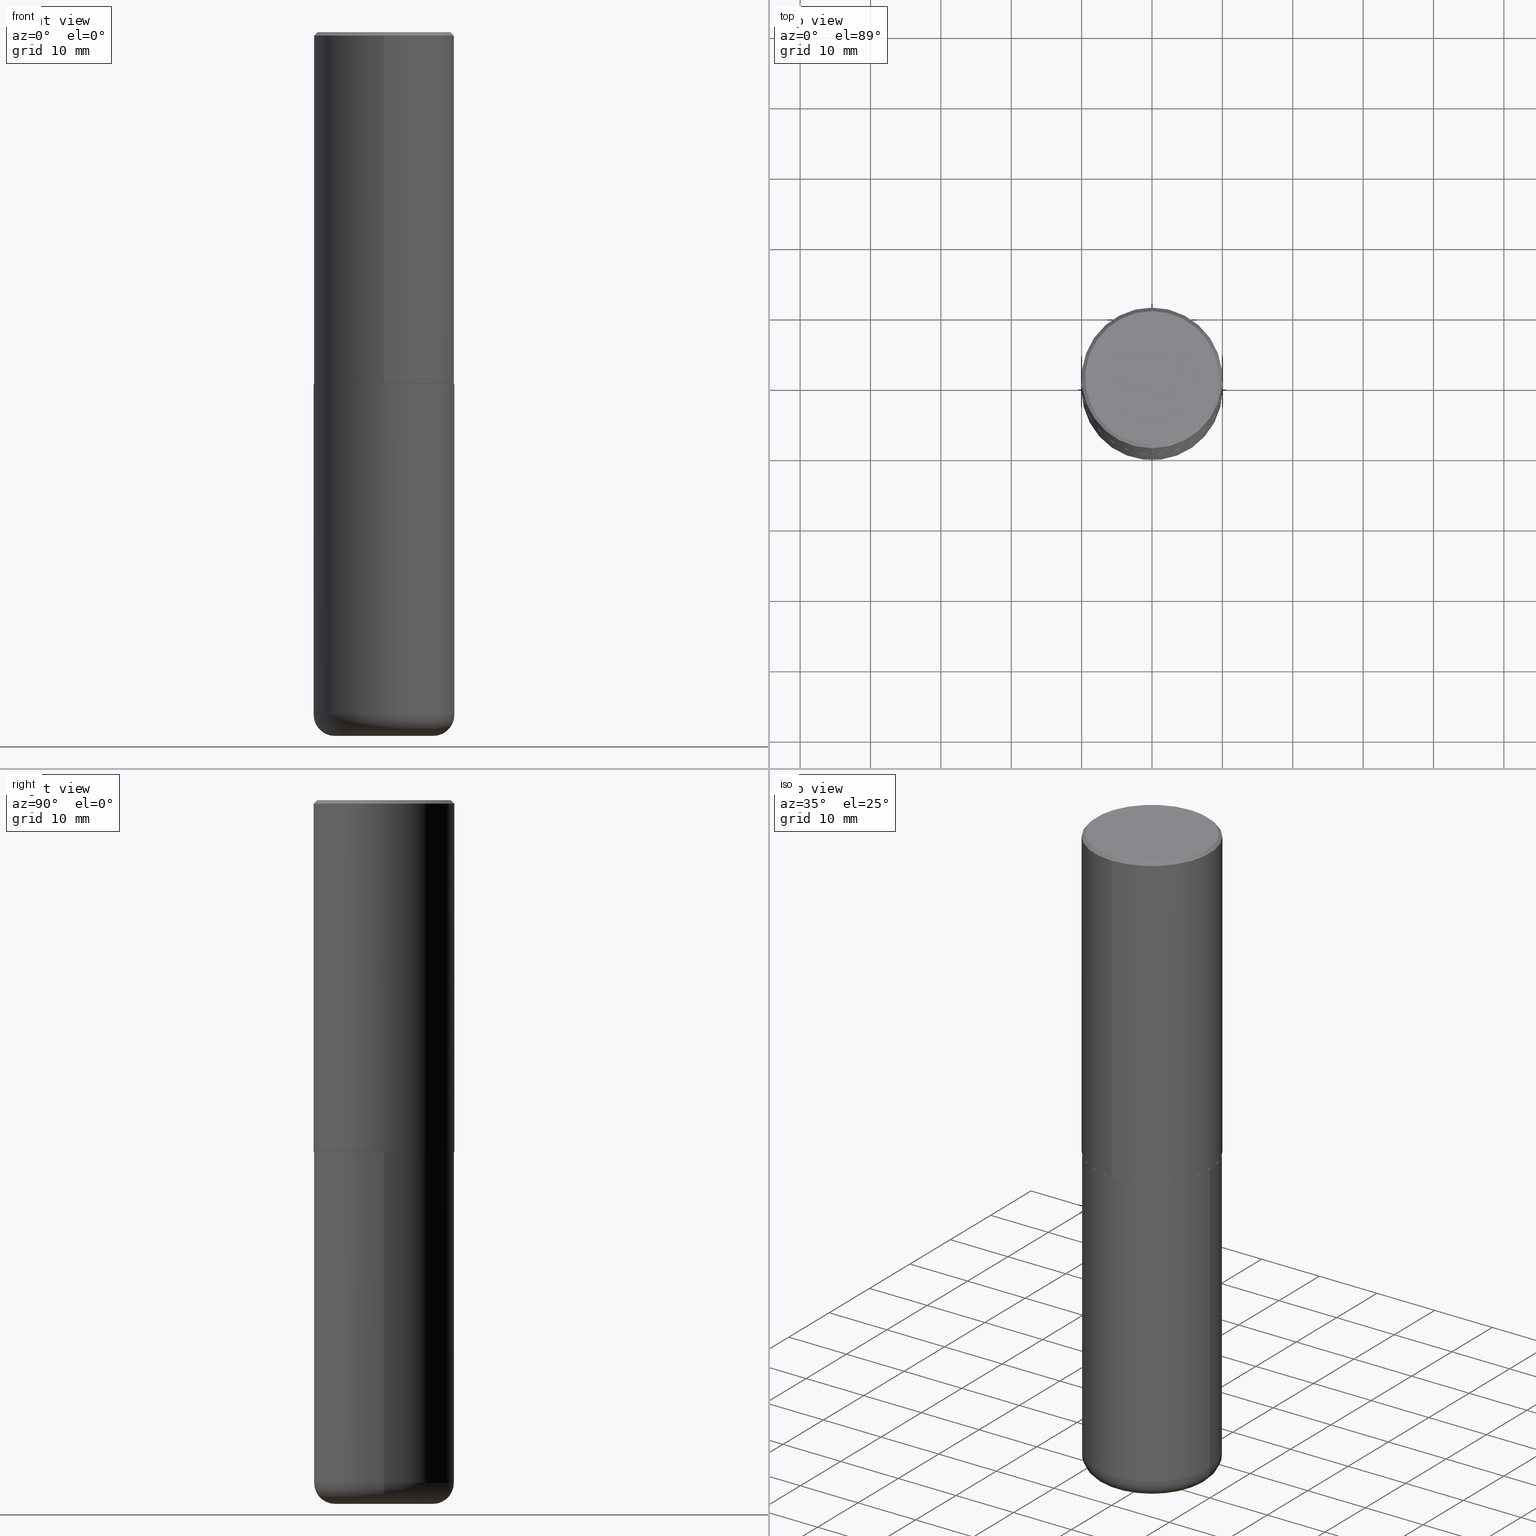
[diagram: canonical four-view strip — front | top / right | iso, engineering-drawing reading convention]
A machine part, canonical four-view strip (front | top / right | iso — engineering-drawing reading convention). The complete STEP part file that produces these views, byte-faithful:
ISO-10303-21;
HEADER;
FILE_DESCRIPTION (( 'STEP AP203' ),
    '1' );
FILE_NAME ('74650.STEP',
    '2024-03-06T15:51:31',
    ( '' ),
    ( '' ),
    'SwSTEP 2.0',
    'SolidWorks 2023',
    '' );
FILE_SCHEMA (( 'CONFIG_CONTROL_DESIGN' ));
ENDSEC;

DATA;
#1 = CARTESIAN_POINT ( 'NONE',  ( 0.3937000000000000499, -2.749192406205083217E-15, 1.919750796630860172E-29 ) ) ;
#2 = CONICAL_SURFACE ( 'NONE', #197, 0.3937000000000000499, 0.7853981633974476129 ) ;
#3 = VECTOR ( 'NONE', #250, 39.37007874015748854 ) ;
#4 = FACE_OUTER_BOUND ( 'NONE', #27, .T. ) ;
#5 = CARTESIAN_POINT ( 'NONE',  ( 4.813905344975441835E-29, -6.872981015512731707E-15, -1.968500000000000139 ) ) ;
#6 = ORIENTED_EDGE ( 'NONE', *, *, #310, .T. ) ;
#7 = DIRECTION ( 'NONE',  ( -2.447902336346030930E-29, 3.487996385144809755E-15, 1.000000000000000000 ) ) ;
#8 = CLOSED_SHELL ( 'NONE', ( #94, #90, #369, #262, #67, #35 ) ) ;
#9 = DIRECTION ( 'NONE',  ( 2.438088387897960049E-29, -3.491481338843145188E-15, -1.000000000000000000 ) ) ;
#10 = APPROVAL_PERSON_ORGANIZATION ( #378, #196, #341 ) ;
#11 = EDGE_LOOP ( 'NONE', ( #216, #82, #111, #22 ) ) ;
#12 = DIRECTION ( 'NONE',  ( 2.447902336346030930E-29, -3.487996385144809755E-15, -1.000000000000000000 ) ) ;
#13 = VERTEX_POINT ( 'NONE', #410 ) ;
#14 = CARTESIAN_POINT ( 'NONE',  ( 2.797406750687515181E-15, 0.3937000000000001609, -1.373224176831512065E-15 ) ) ;
#15 = CARTESIAN_POINT ( 'NONE',  ( 4.818695749097161561E-29, -6.866120884157558352E-15, -1.968500000000000139 ) ) ;
#16 = AXIS2_PLACEMENT_3D ( 'NONE', #286, #110, #353 ) ;
#17 = AXIS2_PLACEMENT_3D ( 'NONE', #181, #178, #303 ) ;
#18 = EDGE_LOOP ( 'NONE', ( #6, #20, #51, #194 ) ) ;
#19 = CYLINDRICAL_SURFACE ( 'NONE', #17, 0.3937000000000001609 ) ;
#20 = ORIENTED_EDGE ( 'NONE', *, *, #28, .T. ) ;
#21 = APPROVAL_DATE_TIME ( #287, #321 ) ;
#22 = ORIENTED_EDGE ( 'NONE', *, *, #46, .F. ) ;
#23 = PERSON_AND_ORGANIZATION_ROLE ( 'classification_officer' ) ;
#24 = CIRCLE ( 'NONE', #266, 0.3737000000000000322 ) ;
#25 = CIRCLE ( 'NONE', #136, 0.3926999999999999935 ) ;
#26 = DIRECTION ( 'NONE',  ( 2.438088387897960049E-29, -3.491481338843145188E-15, -1.000000000000000000 ) ) ;
#27 = EDGE_LOOP ( 'NONE', ( #285, #186, #89, #173 ) ) ;
#28 = EDGE_CURVE ( 'NONE', #332, #13, #126, .T. ) ;
#29 = DIRECTION ( 'NONE',  ( 0.000000000000000000, 0.000000000000000000, 1.000000000000000000 ) ) ;
#30 = CARTESIAN_POINT ( 'NONE',  ( 2.797406750687540030E-15, 0.3936999999999934441, -1.967500000000001359 ) ) ;
#31 = ADVANCED_FACE ( 'NONE', ( #63 ), #37, .T. ) ;
#32 = PERSON_AND_ORGANIZATION_ROLE ( 'design_owner' ) ;
#33 = LOCAL_TIME ( 10, 51, 31.00000000000000000, #102 ) ;
#34 = APPROVAL_STATUS ( 'not_yet_approved' ) ;
#35 = ADVANCED_FACE ( 'NONE', ( #191 ), #311, .T. ) ;
#36 = CARTESIAN_POINT ( 'NONE',  ( 0.000000000000000000, 0.000000000000000000, 0.000000000000000000 ) ) ;
#37 = CONICAL_SURFACE ( 'NONE', #217, 0.3926999999999999935, 0.7853981633974141952 ) ;
#38 = AXIS2_PLACEMENT_3D ( 'NONE', #335, #269, #83 ) ;
#39 = DIRECTION ( 'NONE',  ( -2.445468806185136597E-29, 3.491481338843145583E-15, 1.000000000000000000 ) ) ;
#40 = DIRECTION ( 'NONE',  ( 7.105427357601001859E-15, 1.000000000000000000, -3.491481338843145583E-15 ) ) ;
#41 = VERTEX_POINT ( 'NONE', #214 ) ;
#42 = CC_DESIGN_PERSON_AND_ORGANIZATION_ASSIGNMENT ( #164, #124, ( #75 ) ) ;
#43 = PLANE ( 'NONE',  #253 ) ;
#44 = SECURITY_CLASSIFICATION ( '', '', #66 ) ;
#45 = CARTESIAN_POINT ( 'NONE',  ( 4.816247846760815671E-29, -6.862632887772413316E-15, -1.967500000000000027 ) ) ;
#46 = EDGE_CURVE ( 'NONE', #332, #57, #312, .T. ) ;
#47 = ORIENTED_EDGE ( 'NONE', *, *, #397, .F. ) ;
#48 = UNCERTAINTY_MEASURE_WITH_UNIT (LENGTH_MEASURE( 1.000000000000000082E-05 ), #350, 'distance_accuracy_value', 'NONE');
#49 = DIRECTION ( 'NONE',  ( 2.447902336346030930E-29, -3.487996385144809755E-15, -1.000000000000000000 ) ) ;
#50 = EDGE_CURVE ( 'NONE', #370, #57, #283, .T. ) ;
#51 = ORIENTED_EDGE ( 'NONE', *, *, #122, .F. ) ;
#52 = CARTESIAN_POINT ( 'NONE',  ( 4.895804672692082949E-31, -6.975992770289649092E-17, -0.02000000000000008715 ) ) ;
#53 = CC_DESIGN_PERSON_AND_ORGANIZATION_ASSIGNMENT ( #376, #23, ( #44 ) ) ;
#54 = ORIENTED_EDGE ( 'NONE', *, *, #122, .T. ) ;
#55 = DIRECTION ( 'NONE',  ( -2.445468806185136597E-29, 3.491481338843145583E-15, 1.000000000000000000 ) ) ;
#56 = CIRCLE ( 'NONE', #98, 0.3937000000000000499 ) ;
#57 = VERTEX_POINT ( 'NONE', #329 ) ;
#58 = APPROVAL_STATUS ( 'not_yet_approved' ) ;
#59 = EDGE_LOOP ( 'NONE', ( #65, #364 ) ) ;
#60 = DESIGN_CONTEXT ( 'detailed design', #210, 'design' ) ;
#61 = EDGE_CURVE ( 'NONE', #327, #86, #56, .T. ) ;
#62 = CARTESIAN_POINT ( 'NONE',  ( -2.749192406205084005E-15, -0.3937000000000001609, 1.373224176831512065E-15 ) ) ;
#63 = FACE_OUTER_BOUND ( 'NONE', #120, .T. ) ;
#64 = AXIS2_PLACEMENT_3D ( 'NONE', #101, #171, #293 ) ;
#65 = ORIENTED_EDGE ( 'NONE', *, *, #190, .F. ) ;
#66 = SECURITY_CLASSIFICATION_LEVEL ( 'unclassified' ) ;
#67 = ADVANCED_FACE ( 'NONE', ( #161 ), #244, .T. ) ;
#68 = DIRECTION ( 'NONE',  ( -6.982962677686265133E-15, -1.000000000000000000, 3.478288761986584267E-15 ) ) ;
#69 = CIRCLE ( 'NONE', #267, 0.3926999999999999935 ) ;
#70 = ORGANIZATION ( 'UNSPECIFIED', 'UNSPECIFIED', '' ) ;
#71 = LINE ( 'NONE', #1, #198 ) ;
#72 = FACE_OUTER_BOUND ( 'NONE', #76, .T. ) ;
#73 = LOCAL_TIME ( 10, 51, 31.00000000000000000, #220 ) ;
#74 = CARTESIAN_POINT ( 'NONE',  ( -0.2756000000000000116, -1.116195879274560421E-14, -3.937000000000000277 ) ) ;
#75 = PRODUCT_DEFINITION ( 'UNKNOWN', '', #416, #60 ) ;
#76 = EDGE_LOOP ( 'NONE', ( #272, #343, #179, #95 ) ) ;
#77 = DIRECTION ( 'NONE',  ( -6.982962677686265133E-15, -1.000000000000000000, 3.491137977679279424E-15 ) ) ;
#78 = LINE ( 'NONE', #180, #141 ) ;
#79 = VERTEX_POINT ( 'NONE', #358 ) ;
#80 = AXIS2_PLACEMENT_3D ( 'NONE', #228, #229, #201 ) ;
#81 = CARTESIAN_POINT ( 'NONE',  ( 2.790301323329961110E-15, 0.3926999999999931101, -1.968500000000001693 ) ) ;
#82 = ORIENTED_EDGE ( 'NONE', *, *, #233, .T. ) ;
#83 = DIRECTION ( 'NONE',  ( 1.000000000000000000, -6.982962677686267499E-15, 0.000000000000000000 ) ) ;
#84 = DIRECTION ( 'NONE',  ( -2.447902336346030930E-29, 3.487996385144809755E-15, 1.000000000000000000 ) ) ;
#85 = CARTESIAN_POINT ( 'NONE',  ( 4.813905344975441835E-29, -6.872981015512731707E-15, -1.968500000000000139 ) ) ;
#86 = VERTEX_POINT ( 'NONE', #294 ) ;
#87 = CARTESIAN_POINT ( 'NONE',  ( -0.3937000000000000499, -1.053621133422057529E-14, -3.818900000000000183 ) ) ;
#88 = CIRCLE ( 'NONE', #355, 0.1180999999999999966 ) ;
#89 = ORIENTED_EDGE ( 'NONE', *, *, #183, .T. ) ;
#90 = ADVANCED_FACE ( 'NONE', ( #72 ), #415, .T. ) ;
#91 =( NAMED_UNIT ( * ) SI_UNIT ( $, .STERADIAN. ) SOLID_ANGLE_UNIT ( ) );
#92 = DIRECTION ( 'NONE',  ( -2.445468806185136877E-29, 3.491481338843145188E-15, 1.000000000000000000 ) ) ;
#93 = CALENDAR_DATE ( 2024, 6, 3 ) ;
#94 = ADVANCED_FACE ( 'NONE', ( #414 ), #131, .T. ) ;
#95 = ORIENTED_EDGE ( 'NONE', *, *, #50, .F. ) ;
#96 = DATE_TIME_ROLE ( 'creation_date' ) ;
#97 = EDGE_CURVE ( 'NONE', #57, #41, #71, .T. ) ;
#98 = AXIS2_PLACEMENT_3D ( 'NONE', #140, #389, #354 ) ;
#99 = PRODUCT ( '74650', '74650', '', ( #248 ) ) ;
#100 = CC_DESIGN_SECURITY_CLASSIFICATION ( #44, ( #416 ) ) ;
#101 = CARTESIAN_POINT ( 'NONE',  ( 2.609533152651357803E-15, 0.3737000000000000322, -1.336129256402902755E-15 ) ) ;
#102 = COORDINATED_UNIVERSAL_TIME_OFFSET ( 5, 0, .BEHIND. ) ;
#103 = LENGTH_MEASURE_WITH_UNIT ( LENGTH_MEASURE( 0.02539999999999999897 ), #317 );
#104 = ADVANCED_BREP_SHAPE_REPRESENTATION ( '74650', ( #270, #135, #402 ), #363 ) ;
#105 = APPROVAL ( #34, 'UNSPECIFIED' ) ;
#106 = DIRECTION ( 'NONE',  ( 1.000000000000000000, -6.982962677686265133E-15, 0.000000000000000000 ) ) ;
#107 = DIRECTION ( 'NONE',  ( 1.000000000000000000, -6.982962677686265922E-15, 0.000000000000000000 ) ) ;
#108 = CARTESIAN_POINT ( 'NONE',  ( 4.895804672692082949E-31, -6.975992770289649092E-17, -0.02000000000000008715 ) ) ;
#109 = AXIS2_PLACEMENT_3D ( 'NONE', #411, #128, #223 ) ;
#110 = DIRECTION ( 'NONE',  ( -2.445468806185136597E-29, 3.491481338843145583E-15, 1.000000000000000000 ) ) ;
#111 = ORIENTED_EDGE ( 'NONE', *, *, #50, .T. ) ;
#112 = FACE_OUTER_BOUND ( 'NONE', #328, .T. ) ;
#113 = ORIENTED_EDGE ( 'NONE', *, *, #265, .F. ) ;
#114 = ADVANCED_FACE ( 'NONE', ( #4 ), #155, .T. ) ;
#115 = CARTESIAN_POINT ( 'NONE',  ( 2.793854037008762797E-15, 0.3926999999999931101, -1.968500000000001693 ) ) ;
#116 = CIRCLE ( 'NONE', #257, 0.2756000000000000116 ) ;
#117 = CYLINDRICAL_SURFACE ( 'NONE', #339, 0.3937000000000001609 ) ;
#118 = ORIENTED_EDGE ( 'NONE', *, *, #254, .T. ) ;
#119 = CARTESIAN_POINT ( 'NONE',  ( 0.000000000000000000, 0.000000000000000000, 0.000000000000000000 ) ) ;
#120 = EDGE_LOOP ( 'NONE', ( #280, #118, #315, #278 ) ) ;
#121 = DIRECTION ( 'NONE',  ( -4.851104656540959542E-15, -0.7071067811865493491, -0.7071067811865454633 ) ) ;
#122 = EDGE_CURVE ( 'NONE', #41, #13, #147, .T. ) ;
#123 = ORIENTED_EDGE ( 'NONE', *, *, #129, .T. ) ;
#124 = PERSON_AND_ORGANIZATION_ROLE ( 'creator' ) ;
#125 = AXIS2_PLACEMENT_3D ( 'NONE', #174, #405, #207 ) ;
#126 = LINE ( 'NONE', #247, #352 ) ;
#127 = APPLICATION_PROTOCOL_DEFINITION ( 'international standard', 'config_control_design', 1994, #381 ) ;
#128 = DIRECTION ( 'NONE',  ( -2.445468806185136597E-29, 3.491481338843145583E-15, 1.000000000000000000 ) ) ;
#129 = EDGE_CURVE ( 'NONE', #241, #308, #24, .T. ) ;
#130 = CARTESIAN_POINT ( 'NONE',  ( 2.749192406205083217E-15, 0.3936999999999999389, -0.02000000000000146105 ) ) ;
#131 = CYLINDRICAL_SURFACE ( 'NONE', #318, 0.3937000000000000499 ) ;
#132 =( NAMED_UNIT ( * ) PLANE_ANGLE_UNIT ( ) SI_UNIT ( $, .RADIAN. ) );
#133 = VECTOR ( 'NONE', #163, 39.37007874015748854 ) ;
#134 = CC_DESIGN_APPROVAL ( #321, ( #416 ) ) ;
#135 = MANIFOLD_SOLID_BREP ( 'Body-Move/Copy2[2]', #401 ) ;
#136 = AXIS2_PLACEMENT_3D ( 'NONE', #301, #234, #330 ) ;
#137 = APPROVAL_ROLE ( '' ) ;
#138 = DIRECTION ( 'NONE',  ( -6.982962677686265922E-15, -1.000000000000000000, 3.487996385144809755E-15 ) ) ;
#139 = DIRECTION ( 'NONE',  ( -1.000000000000000000, 7.105427357601005014E-15, 0.000000000000000000 ) ) ;
#140 = CARTESIAN_POINT ( 'NONE',  ( 4.895804672692082949E-31, -6.975992770289649092E-17, -0.02000000000000008715 ) ) ;
#141 = VECTOR ( 'NONE', #121, 39.37007874015748854 ) ;
#142 = DIRECTION ( 'NONE',  ( -1.000000000000000000, 6.982962677686265922E-15, -4.876176775795935793E-29 ) ) ;
#143 = ORIENTED_EDGE ( 'NONE', *, *, #129, .F. ) ;
#144 = DIRECTION ( 'NONE',  ( -2.447902336346030930E-29, 3.487996385144809360E-15, 1.000000000000000000 ) ) ;
#145 = EDGE_LOOP ( 'NONE', ( #268, #123 ) ) ;
#146 = DIRECTION ( 'NONE',  ( -6.982962677686265922E-15, -1.000000000000000000, 3.487996385144809360E-15 ) ) ;
#147 = CIRCLE ( 'NONE', #387, 0.3937000000000000499 ) ;
#148 = DIRECTION ( 'NONE',  ( 5.024295867787889629E-15, 0.7071067811865257013, 0.7071067811865691111 ) ) ;
#149 = EDGE_LOOP ( 'NONE', ( #176, #239, #188, #360 ) ) ;
#150 = CC_DESIGN_PERSON_AND_ORGANIZATION_ASSIGNMENT ( #189, #32, ( #99 ) ) ;
#151 = CARTESIAN_POINT ( 'NONE',  ( -2.742209443527348687E-15, -0.3927000000000069324, -1.968499999999999028 ) ) ;
#152 = ORIENTED_EDGE ( 'NONE', *, *, #340, .F. ) ;
#153 = PERSON_AND_ORGANIZATION ( #177, #70 ) ;
#154 = VERTEX_POINT ( 'NONE', #74 ) ;
#155 = CONICAL_SURFACE ( 'NONE', #168, 0.3926999999999999935, 0.7853981633974141952 ) ;
#156 = COORDINATED_UNIVERSAL_TIME_OFFSET ( 5, 0, .BEHIND. ) ;
#157 = CIRCLE ( 'NONE', #125, 0.3737000000000000322 ) ;
#158 = ADVANCED_FACE ( 'NONE', ( #391 ), #204, .F. ) ;
#159 = DIRECTION ( 'NONE',  ( -1.000000000000000000, 6.982962677686265922E-15, -4.876176775795935793E-29 ) ) ;
#160 = DIRECTION ( 'NONE',  ( -2.447902336346030930E-29, 3.487996385144809360E-15, 1.000000000000000000 ) ) ;
#161 = FACE_OUTER_BOUND ( 'NONE', #11, .T. ) ;
#162 = PRODUCT_RELATED_PRODUCT_CATEGORY ( 'detail', '', ( #99 ) ) ;
#163 = DIRECTION ( 'NONE',  ( -4.937700262164378437E-15, -0.7071067811865208164, 0.7071067811865739960 ) ) ;
#164 = PERSON_AND_ORGANIZATION ( #177, #70 ) ;
#165 = LOCAL_TIME ( 10, 51, 31.00000000000000000, #307 ) ;
#166 = COORDINATED_UNIVERSAL_TIME_OFFSET ( 5, 0, .BEHIND. ) ;
#167 = CARTESIAN_POINT ( 'NONE',  ( -0.2756000000000000116, -1.137536230515325427E-14, -3.818900000000000183 ) ) ;
#168 = AXIS2_PLACEMENT_3D ( 'NONE', #323, #382, #68 ) ;
#169 = AXIS2_PLACEMENT_3D ( 'NONE', #52, #49, #371 ) ;
#170 = EDGE_CURVE ( 'NONE', #154, #332, #88, .T. ) ;
#171 = DIRECTION ( 'NONE',  ( 2.447902336346030930E-29, -3.487996385144809360E-15, -1.000000000000000000 ) ) ;
#172 = DIRECTION ( 'NONE',  ( -2.445468806185136597E-29, 3.491481338843145583E-15, 1.000000000000000000 ) ) ;
#173 = ORIENTED_EDGE ( 'NONE', *, *, #227, .F. ) ;
#174 = CARTESIAN_POINT ( 'NONE',  ( 1.599214952469751148E-45, -2.278708545868848433E-31, -6.533001454857425165E-17 ) ) ;
#175 = AXIS2_PLACEMENT_3D ( 'NONE', #345, #336, #251 ) ;
#176 = ORIENTED_EDGE ( 'NONE', *, *, #28, .F. ) ;
#177 = PERSON ( 'UNSPECIFIED', 'UNSPECIFIED', 'UNSPECIFIED', ('UNSPECIFIED'), ('UNSPECIFIED'), ('UNSPECIFIED') ) ;
#178 = DIRECTION ( 'NONE',  ( -2.447902336346030930E-29, 3.487996385144809755E-15, 1.000000000000000000 ) ) ;
#179 = ORIENTED_EDGE ( 'NONE', *, *, #310, .F. ) ;
#180 = CARTESIAN_POINT ( 'NONE',  ( -2.700978061722651252E-15, -0.3937000000000001054, -0.01999999999999870978 ) ) ;
#181 = CARTESIAN_POINT ( 'NONE',  ( 0.000000000000000000, 0.000000000000000000, 0.000000000000000000 ) ) ;
#182 = VERTEX_POINT ( 'NONE', #30 ) ;
#183 = EDGE_CURVE ( 'NONE', #302, #79, #226, .T. ) ;
#184 = VECTOR ( 'NONE', #148, 39.37007874015748854 ) ;
#185 = DIRECTION ( 'NONE',  ( -2.447902336346030930E-29, 3.487996385144809755E-15, 1.000000000000000000 ) ) ;
#186 = ORIENTED_EDGE ( 'NONE', *, *, #265, .T. ) ;
#187 = CALENDAR_DATE ( 2024, 6, 3 ) ;
#188 = ORIENTED_EDGE ( 'NONE', *, *, #97, .T. ) ;
#189 = PERSON_AND_ORGANIZATION ( #177, #70 ) ;
#190 = EDGE_CURVE ( 'NONE', #370, #154, #116, .T. ) ;
#191 = FACE_OUTER_BOUND ( 'NONE', #59, .T. ) ;
#192 = CIRCLE ( 'NONE', #324, 0.3937000000000000499 ) ;
#193 = CIRCLE ( 'NONE', #384, 0.3937000000000002720 ) ;
#194 = ORIENTED_EDGE ( 'NONE', *, *, #97, .F. ) ;
#195 = DIRECTION ( 'NONE',  ( 1.000000000000000000, -6.982962677686268288E-15, 4.883557194083112901E-29 ) ) ;
#196 = APPROVAL ( #309, 'UNSPECIFIED' ) ;
#197 = AXIS2_PLACEMENT_3D ( 'NONE', #400, #12, #365 ) ;
#198 = VECTOR ( 'NONE', #264, 39.37007874015748143 ) ;
#199 = DATE_AND_TIME ( #284, #208 ) ;
#200 = DIRECTION ( 'NONE',  ( -2.445468806185136597E-29, 3.491481338843145583E-15, 1.000000000000000000 ) ) ;
#201 = DIRECTION ( 'NONE',  ( -6.982962677686265922E-15, -1.000000000000000000, 3.469453890861393601E-15 ) ) ;
#202 = AXIS2_PLACEMENT_3D ( 'NONE', #108, #7, #77 ) ;
#203 = VECTOR ( 'NONE', #160, 39.37007874015748143 ) ;
#204 = PLANE ( 'NONE',  #64 ) ;
#205 = ORIENTED_EDGE ( 'NONE', *, *, #404, .T. ) ;
#206 = CARTESIAN_POINT ( 'NONE',  ( -2.632373081744936315E-15, -0.3737000000000000322, 1.238134234580041113E-15 ) ) ;
#207 = DIRECTION ( 'NONE',  ( -6.982962677686265922E-15, -1.000000000000000000, 3.487996385144809755E-15 ) ) ;
#208 = LOCAL_TIME ( 10, 51, 31.00000000000000000, #156 ) ;
#209 = DIRECTION ( 'NONE',  ( 1.000000000000000000, -6.982962677686265922E-15, 4.876176775795935793E-29 ) ) ;
#210 = APPLICATION_CONTEXT ( 'configuration controlled 3d designs of mechanical parts and assemblies' ) ;
#211 = ORIENTED_EDGE ( 'NONE', *, *, #237, .F. ) ;
#212 = DIMENSIONAL_EXPONENTS ( 1.000000000000000000, 0.000000000000000000, 0.000000000000000000, 0.000000000000000000, 0.000000000000000000, 0.000000000000000000, 0.000000000000000000 ) ;
#213 = FACE_OUTER_BOUND ( 'NONE', #377, .T. ) ;
#214 = CARTESIAN_POINT ( 'NONE',  ( 0.3937000000000000499, -9.622173421717814924E-15, -1.968500000000000139 ) ) ;
#215 = CARTESIAN_POINT ( 'NONE',  ( 0.000000000000000000, 0.000000000000000000, 0.000000000000000000 ) ) ;
#216 = ORIENTED_EDGE ( 'NONE', *, *, #170, .F. ) ;
#217 = AXIS2_PLACEMENT_3D ( 'NONE', #221, #84, #379 ) ;
#218 = FACE_OUTER_BOUND ( 'NONE', #392, .T. ) ;
#219 = ORIENTED_EDGE ( 'NONE', *, *, #397, .T. ) ;
#220 = COORDINATED_UNIVERSAL_TIME_OFFSET ( 5, 0, .BEHIND. ) ;
#221 = CARTESIAN_POINT ( 'NONE',  ( 4.818695749097162682E-29, -6.866120884157559141E-15, -1.968500000000000361 ) ) ;
#222 = LINE ( 'NONE', #62, #203 ) ;
#223 = DIRECTION ( 'NONE',  ( 1.000000000000000000, -6.982962677686267499E-15, 0.000000000000000000 ) ) ;
#224 = PERSON_AND_ORGANIZATION_ROLE ( 'creator' ) ;
#225 = APPROVAL_PERSON_ORGANIZATION ( #386, #105, #137 ) ;
#226 = LINE ( 'NONE', #316, #133 ) ;
#227 = EDGE_CURVE ( 'NONE', #182, #79, #346, .T. ) ;
#228 = CARTESIAN_POINT ( 'NONE',  ( 4.816247846760815671E-29, -6.862632887772413316E-15, -1.967500000000000027 ) ) ;
#229 = DIRECTION ( 'NONE',  ( -2.447902336346030930E-29, 3.487996385144809755E-15, 1.000000000000000000 ) ) ;
#230 = DIRECTION ( 'NONE',  ( -2.447902336346030930E-29, 3.487996385144809755E-15, 1.000000000000000000 ) ) ;
#231 = CIRCLE ( 'NONE', #372, 0.2756000000000000116 ) ;
#232 = DIRECTION ( 'NONE',  ( 1.000000000000000000, -6.982962677686265922E-15, 0.000000000000000000 ) ) ;
#233 = EDGE_CURVE ( 'NONE', #154, #370, #231, .T. ) ;
#234 = DIRECTION ( 'NONE',  ( -2.447902336346030930E-29, 3.487996385144809755E-15, 1.000000000000000000 ) ) ;
#235 = EDGE_CURVE ( 'NONE', #13, #41, #192, .T. ) ;
#236 = LINE ( 'NONE', #130, #3 ) ;
#237 = EDGE_CURVE ( 'NONE', #86, #327, #383, .T. ) ;
#238 = CARTESIAN_POINT ( 'NONE',  ( 4.818695749097162682E-29, -6.866120884157559141E-15, -1.968500000000000361 ) ) ;
#239 = ORIENTED_EDGE ( 'NONE', *, *, #46, .T. ) ;
#240 = FACE_OUTER_BOUND ( 'NONE', #367, .T. ) ;
#241 = VERTEX_POINT ( 'NONE', #206 ) ;
#242 = CYLINDRICAL_SURFACE ( 'NONE', #296, 0.3937000000000000499 ) ;
#243 = ORIENTED_EDGE ( 'NONE', *, *, #227, .T. ) ;
#244 = TOROIDAL_SURFACE ( 'NONE', #331, 0.2756000000000000116, 0.1181000000000000105 ) ;
#245 = LOCAL_TIME ( 10, 51, 31.00000000000000000, #166 ) ;
#246 = CALENDAR_DATE ( 2024, 6, 3 ) ;
#247 = CARTESIAN_POINT ( 'NONE',  ( -0.3937000000000000499, 2.797406750687514786E-15, -1.936584745033356735E-29 ) ) ;
#248 = MECHANICAL_CONTEXT ( 'NONE', #381, 'mechanical' ) ;
#249 = ORIENTED_EDGE ( 'NONE', *, *, #314, .T. ) ;
#250 = DIRECTION ( 'NONE',  ( 4.937700262164543309E-15, 0.7071067811865444641, -0.7071067811865503483 ) ) ;
#251 = DIRECTION ( 'NONE',  ( 1.000000000000000000, -6.982962677686273021E-15, 0.000000000000000000 ) ) ;
#252 = DIRECTION ( 'NONE',  ( 1.000000000000000000, 0.000000000000000000, 0.000000000000000000 ) ) ;
#253 = AXIS2_PLACEMENT_3D ( 'NONE', #15, #144, #277 ) ;
#254 = EDGE_CURVE ( 'NONE', #395, #182, #337, .T. ) ;
#255 = CC_DESIGN_DATE_AND_TIME_ASSIGNMENT ( #199, #322, ( #44 ) ) ;
#256 = ADVANCED_FACE ( 'NONE', ( #112 ), #2, .T. ) ;
#257 = AXIS2_PLACEMENT_3D ( 'NONE', #261, #172, #107 ) ;
#258 = DIRECTION ( 'NONE',  ( -2.445468806185136597E-29, 3.491481338843145583E-15, 1.000000000000000000 ) ) ;
#259 = CIRCLE ( 'NONE', #38, 0.3937000000000000499 ) ;
#260 = SHAPE_DEFINITION_REPRESENTATION ( #362, #104 ) ;
#261 = CARTESIAN_POINT ( 'NONE',  ( 9.627810689950883669E-29, -1.374596203102546341E-14, -3.937000000000000277 ) ) ;
#262 = ADVANCED_FACE ( 'NONE', ( #359 ), #242, .T. ) ;
#263 = DIRECTION ( 'NONE',  ( -2.445468806185136597E-29, 3.491481338843145583E-15, 1.000000000000000000 ) ) ;
#264 = DIRECTION ( 'NONE',  ( -2.445468806185136877E-29, 3.491481338843145188E-15, 1.000000000000000000 ) ) ;
#265 = EDGE_CURVE ( 'NONE', #395, #302, #69, .T. ) ;
#266 = AXIS2_PLACEMENT_3D ( 'NONE', #349, #230, #138 ) ;
#267 = AXIS2_PLACEMENT_3D ( 'NONE', #238, #333, #279 ) ;
#268 = ORIENTED_EDGE ( 'NONE', *, *, #366, .T. ) ;
#269 = DIRECTION ( 'NONE',  ( -2.445468806185136597E-29, 3.491481338843145583E-15, 1.000000000000000000 ) ) ;
#270 = MANIFOLD_SOLID_BREP ( 'Body-Move/Copy2[1]', #8 ) ;
#271 = CARTESIAN_POINT ( 'NONE',  ( 0.2756000000000000116, -1.567046654499579837E-14, -3.937000000000000277 ) ) ;
#272 = ORIENTED_EDGE ( 'NONE', *, *, #190, .T. ) ;
#273 = EDGE_CURVE ( 'NONE', #302, #395, #25, .T. ) ;
#274 = CARTESIAN_POINT ( 'NONE',  ( 2.749192406205083217E-15, 0.3936999999999999389, -0.02000000000000146105 ) ) ;
#275 = ORIENTED_EDGE ( 'NONE', *, *, #61, .F. ) ;
#276 = CC_DESIGN_APPROVAL ( #105, ( #44 ) ) ;
#277 = DIRECTION ( 'NONE',  ( -6.982962677686265922E-15, -1.000000000000000000, 3.487996385144809360E-15 ) ) ;
#278 = ORIENTED_EDGE ( 'NONE', *, *, #183, .F. ) ;
#279 = DIRECTION ( 'NONE',  ( -6.982962677686265133E-15, -1.000000000000000000, 3.478288761986584267E-15 ) ) ;
#280 = ORIENTED_EDGE ( 'NONE', *, *, #273, .T. ) ;
#281 = PERSON_AND_ORGANIZATION ( #177, #70 ) ;
#282 = EDGE_LOOP ( 'NONE', ( #54, #334 ) ) ;
#283 = CIRCLE ( 'NONE', #175, 0.1180999999999999966 ) ;
#284 = CALENDAR_DATE ( 2024, 6, 3 ) ;
#285 = ORIENTED_EDGE ( 'NONE', *, *, #254, .F. ) ;
#286 = CARTESIAN_POINT ( 'NONE',  ( 9.339000823940418668E-29, -1.333361808490808928E-14, -3.818900000000000183 ) ) ;
#287 = DATE_AND_TIME ( #93, #165 ) ;
#288 = PERSON_AND_ORGANIZATION ( #177, #70 ) ;
#289 = DIRECTION ( 'NONE',  ( 1.000000000000000000, -6.982962677686265922E-15, 4.876176775795935793E-29 ) ) ;
#290 = DATE_AND_TIME ( #388, #245 ) ;
#291 = CARTESIAN_POINT ( 'NONE',  ( 9.339000823940418668E-29, -1.333361808490808928E-14, -3.818900000000000183 ) ) ;
#292 = CC_DESIGN_APPROVAL ( #196, ( #75 ) ) ;
#293 = DIRECTION ( 'NONE',  ( 6.982962677686265922E-15, 1.000000000000000000, -3.487996385144809360E-15 ) ) ;
#294 = CARTESIAN_POINT ( 'NONE',  ( -2.700978061722651252E-15, -0.3937000000000001054, -0.01999999999999870978 ) ) ;
#295 = PLANE ( 'NONE',  #375 ) ;
#296 = AXIS2_PLACEMENT_3D ( 'NONE', #119, #55, #209 ) ;
#297 = VECTOR ( 'NONE', #407, 39.37007874015748143 ) ;
#298 = ORIENTED_EDGE ( 'NONE', *, *, #314, .F. ) ;
#299 = FACE_OUTER_BOUND ( 'NONE', #338, .T. ) ;
#300 = ADVANCED_FACE ( 'NONE', ( #299 ), #117, .T. ) ;
#301 = CARTESIAN_POINT ( 'NONE',  ( 4.818695749097162682E-29, -6.866120884157559141E-15, -1.968500000000000361 ) ) ;
#302 = VERTEX_POINT ( 'NONE', #151 ) ;
#303 = DIRECTION ( 'NONE',  ( -6.982962677686265922E-15, -1.000000000000000000, 3.487996385144809360E-15 ) ) ;
#304 = ORIENTED_EDGE ( 'NONE', *, *, #404, .F. ) ;
#305 = LINE ( 'NONE', #14, #297 ) ;
#306 = ORIENTED_EDGE ( 'NONE', *, *, #273, .F. ) ;
#307 = COORDINATED_UNIVERSAL_TIME_OFFSET ( 5, 0, .BEHIND. ) ;
#308 = VERTEX_POINT ( 'NONE', #361 ) ;
#309 = APPROVAL_STATUS ( 'not_yet_approved' ) ;
#310 = EDGE_CURVE ( 'NONE', #57, #332, #259, .T. ) ;
#311 = PLANE ( 'NONE',  #373 ) ;
#312 = CIRCLE ( 'NONE', #109, 0.3937000000000000499 ) ;
#313 = APPROVAL_DATE_TIME ( #409, #196 ) ;
#314 = EDGE_CURVE ( 'NONE', #182, #327, #305, .T. ) ;
#315 = ORIENTED_EDGE ( 'NONE', *, *, #390, .F. ) ;
#316 = CARTESIAN_POINT ( 'NONE',  ( -2.742209443527348687E-15, -0.3927000000000069324, -1.968499999999999028 ) ) ;
#317 =( LENGTH_UNIT ( ) NAMED_UNIT ( * ) SI_UNIT ( $, .METRE. ) );
#318 = AXIS2_PLACEMENT_3D ( 'NONE', #36, #200, #289 ) ;
#319 = CONICAL_SURFACE ( 'NONE', #169, 0.3937000000000000499, 0.7853981633974476129 ) ;
#320 = APPROVAL_DATE_TIME ( #290, #105 ) ;
#321 = APPROVAL ( #58, 'UNSPECIFIED' ) ;
#322 = DATE_TIME_ROLE ( 'classification_date' ) ;
#323 = CARTESIAN_POINT ( 'NONE',  ( 4.818695749097162682E-29, -6.866120884157559141E-15, -1.968500000000000361 ) ) ;
#324 = AXIS2_PLACEMENT_3D ( 'NONE', #5, #263, #393 ) ;
#325 = CARTESIAN_POINT ( 'NONE',  ( 9.627810689950883669E-29, -1.374596203102546341E-14, -3.937000000000000277 ) ) ;
#326 = ADVANCED_FACE ( 'NONE', ( #213 ), #319, .T. ) ;
#327 = VERTEX_POINT ( 'NONE', #274 ) ;
#328 = EDGE_LOOP ( 'NONE', ( #143, #408, #406, #47 ) ) ;
#329 = CARTESIAN_POINT ( 'NONE',  ( 0.3937000000000000499, -1.608281049111317408E-14, -3.818900000000000183 ) ) ;
#330 = DIRECTION ( 'NONE',  ( -6.982962677686265133E-15, -1.000000000000000000, 3.478288761986584267E-15 ) ) ;
#331 = AXIS2_PLACEMENT_3D ( 'NONE', #291, #394, #195 ) ;
#332 = VERTEX_POINT ( 'NONE', #87 ) ;
#333 = DIRECTION ( 'NONE',  ( -2.447902336346030930E-29, 3.487996385144809755E-15, 1.000000000000000000 ) ) ;
#334 = ORIENTED_EDGE ( 'NONE', *, *, #235, .T. ) ;
#335 = CARTESIAN_POINT ( 'NONE',  ( 9.339000823940418668E-29, -1.333361808490808928E-14, -3.818900000000000183 ) ) ;
#336 = DIRECTION ( 'NONE',  ( -6.982962677686266711E-15, -1.000000000000000000, 3.491481338843145583E-15 ) ) ;
#337 = LINE ( 'NONE', #81, #184 ) ;
#338 = EDGE_LOOP ( 'NONE', ( #374, #249, #211, #304 ) ) ;
#339 = AXIS2_PLACEMENT_3D ( 'NONE', #215, #185, #146 ) ;
#340 = EDGE_CURVE ( 'NONE', #241, #86, #78, .T. ) ;
#341 = APPROVAL_ROLE ( '' ) ;
#342 = ORIENTED_EDGE ( 'NONE', *, *, #366, .F. ) ;
#343 = ORIENTED_EDGE ( 'NONE', *, *, #170, .T. ) ;
#344 = ADVANCED_FACE ( 'NONE', ( #240 ), #19, .T. ) ;
#345 = CARTESIAN_POINT ( 'NONE',  ( 0.2756000000000000116, -1.525812259887842581E-14, -3.818900000000000183 ) ) ;
#346 = CIRCLE ( 'NONE', #80, 0.3937000000000002720 ) ;
#347 = APPROVAL_PERSON_ORGANIZATION ( #288, #321, #417 ) ;
#348 = PERSON_AND_ORGANIZATION_ROLE ( 'design_supplier' ) ;
#349 = CARTESIAN_POINT ( 'NONE',  ( 1.599214952469751148E-45, -2.278708545868848433E-31, -6.533001454857425165E-17 ) ) ;
#350 =( CONVERSION_BASED_UNIT ( 'INCH', #103 ) LENGTH_UNIT ( ) NAMED_UNIT ( #212 ) );
#351 = ADVANCED_FACE ( 'NONE', ( #218 ), #43, .F. ) ;
#352 = VECTOR ( 'NONE', #92, 39.37007874015748143 ) ;
#353 = DIRECTION ( 'NONE',  ( 1.000000000000000000, -6.982962677686268288E-15, 4.883557194083112901E-29 ) ) ;
#354 = DIRECTION ( 'NONE',  ( -6.982962677686265133E-15, -1.000000000000000000, 3.491137977679279424E-15 ) ) ;
#355 = AXIS2_PLACEMENT_3D ( 'NONE', #167, #40, #139 ) ;
#356 = CARTESIAN_POINT ( 'NONE',  ( 4.813905344975441835E-29, -6.872981015512731707E-15, -1.968500000000000139 ) ) ;
#357 = CC_DESIGN_PERSON_AND_ORGANIZATION_ASSIGNMENT ( #153, #224, ( #416 ) ) ;
#358 = CARTESIAN_POINT ( 'NONE',  ( -2.749192406205036674E-15, -0.3937000000000070998, -1.967499999999998694 ) ) ;
#359 = FACE_OUTER_BOUND ( 'NONE', #149, .T. ) ;
#360 = ORIENTED_EDGE ( 'NONE', *, *, #235, .F. ) ;
#361 = CARTESIAN_POINT ( 'NONE',  ( 2.679362779428220707E-15, 0.3737000000000000322, -1.368794263677189641E-15 ) ) ;
#362 = PRODUCT_DEFINITION_SHAPE ( 'NONE', 'NONE',  #75 ) ;
#363 =( GEOMETRIC_REPRESENTATION_CONTEXT ( 3 ) GLOBAL_UNCERTAINTY_ASSIGNED_CONTEXT ( ( #48 ) ) GLOBAL_UNIT_ASSIGNED_CONTEXT ( ( #350, #132, #91 ) ) REPRESENTATION_CONTEXT ( 'NONE', 'WORKASPACE' ) );
#364 = ORIENTED_EDGE ( 'NONE', *, *, #233, .F. ) ;
#365 = DIRECTION ( 'NONE',  ( 6.982962677686265133E-15, 1.000000000000000000, -3.491137977679279424E-15 ) ) ;
#366 = EDGE_CURVE ( 'NONE', #308, #241, #157, .T. ) ;
#367 = EDGE_LOOP ( 'NONE', ( #298, #243, #205, #275 ) ) ;
#368 = FACE_OUTER_BOUND ( 'NONE', #282, .T. ) ;
#369 = ADVANCED_FACE ( 'NONE', ( #368 ), #295, .F. ) ;
#370 = VERTEX_POINT ( 'NONE', #271 ) ;
#371 = DIRECTION ( 'NONE',  ( 6.982962677686265133E-15, 1.000000000000000000, -3.491137977679279424E-15 ) ) ;
#372 = AXIS2_PLACEMENT_3D ( 'NONE', #325, #39, #232 ) ;
#373 = AXIS2_PLACEMENT_3D ( 'NONE', #403, #26, #159 ) ;
#374 = ORIENTED_EDGE ( 'NONE', *, *, #390, .T. ) ;
#375 = AXIS2_PLACEMENT_3D ( 'NONE', #85, #9, #142 ) ;
#376 = PERSON_AND_ORGANIZATION ( #177, #70 ) ;
#377 = EDGE_LOOP ( 'NONE', ( #152, #342, #219, #398 ) ) ;
#378 = PERSON_AND_ORGANIZATION ( #177, #70 ) ;
#379 = DIRECTION ( 'NONE',  ( -6.982962677686265133E-15, -1.000000000000000000, 3.478288761986584267E-15 ) ) ;
#380 = DATE_AND_TIME ( #246, #73 ) ;
#381 = APPLICATION_CONTEXT ( 'configuration controlled 3d designs of mechanical parts and assemblies' ) ;
#382 = DIRECTION ( 'NONE',  ( -2.447902336346030930E-29, 3.487996385144809755E-15, 1.000000000000000000 ) ) ;
#383 = CIRCLE ( 'NONE', #202, 0.3937000000000000499 ) ;
#384 = AXIS2_PLACEMENT_3D ( 'NONE', #45, #396, #399 ) ;
#385 = CARTESIAN_POINT ( 'NONE',  ( 0.000000000000000000, 0.000000000000000000, 0.000000000000000000 ) ) ;
#386 = PERSON_AND_ORGANIZATION ( #177, #70 ) ;
#387 = AXIS2_PLACEMENT_3D ( 'NONE', #356, #258, #106 ) ;
#388 = CALENDAR_DATE ( 2024, 6, 3 ) ;
#389 = DIRECTION ( 'NONE',  ( -2.447902336346030930E-29, 3.487996385144809755E-15, 1.000000000000000000 ) ) ;
#390 = EDGE_CURVE ( 'NONE', #79, #182, #193, .T. ) ;
#391 = FACE_OUTER_BOUND ( 'NONE', #145, .T. ) ;
#392 = EDGE_LOOP ( 'NONE', ( #306, #113 ) ) ;
#393 = DIRECTION ( 'NONE',  ( 1.000000000000000000, -6.982962677686265133E-15, 0.000000000000000000 ) ) ;
#394 = DIRECTION ( 'NONE',  ( -2.445468806185136597E-29, 3.491481338843145583E-15, 1.000000000000000000 ) ) ;
#395 = VERTEX_POINT ( 'NONE', #115 ) ;
#396 = DIRECTION ( 'NONE',  ( -2.447902336346030930E-29, 3.487996385144809755E-15, 1.000000000000000000 ) ) ;
#397 = EDGE_CURVE ( 'NONE', #308, #327, #236, .T. ) ;
#398 = ORIENTED_EDGE ( 'NONE', *, *, #61, .T. ) ;
#399 = DIRECTION ( 'NONE',  ( -6.982962677686265922E-15, -1.000000000000000000, 3.469453890861393601E-15 ) ) ;
#400 = CARTESIAN_POINT ( 'NONE',  ( 4.895804672692082949E-31, -6.975992770289649092E-17, -0.02000000000000008715 ) ) ;
#401 = CLOSED_SHELL ( 'NONE', ( #31, #300, #256, #326, #344, #114, #351, #158 ) ) ;
#402 = AXIS2_PLACEMENT_3D ( 'NONE', #385, #29, #252 ) ;
#403 = CARTESIAN_POINT ( 'NONE',  ( 9.627810689950883669E-29, -1.374596203102546341E-14, -3.937000000000000277 ) ) ;
#404 = EDGE_CURVE ( 'NONE', #79, #86, #222, .T. ) ;
#405 = DIRECTION ( 'NONE',  ( -2.447902336346030930E-29, 3.487996385144809755E-15, 1.000000000000000000 ) ) ;
#406 = ORIENTED_EDGE ( 'NONE', *, *, #237, .T. ) ;
#407 = DIRECTION ( 'NONE',  ( -2.447902336346030930E-29, 3.487996385144809360E-15, 1.000000000000000000 ) ) ;
#408 = ORIENTED_EDGE ( 'NONE', *, *, #340, .T. ) ;
#409 = DATE_AND_TIME ( #187, #33 ) ;
#410 = CARTESIAN_POINT ( 'NONE',  ( -0.3937000000000000499, -7.305892799522895709E-15, -1.968500000000000139 ) ) ;
#411 = CARTESIAN_POINT ( 'NONE',  ( 9.339000823940418668E-29, -1.333361808490808928E-14, -3.818900000000000183 ) ) ;
#412 = CC_DESIGN_DATE_AND_TIME_ASSIGNMENT ( #380, #96, ( #75 ) ) ;
#413 = APPLICATION_PROTOCOL_DEFINITION ( 'international standard', 'config_control_design', 1994, #210 ) ;
#414 = FACE_OUTER_BOUND ( 'NONE', #18, .T. ) ;
#415 = TOROIDAL_SURFACE ( 'NONE', #16, 0.2756000000000000116, 0.1181000000000000105 ) ;
#416 = PRODUCT_DEFINITION_FORMATION_WITH_SPECIFIED_SOURCE ( 'ANY', '', #99, .NOT_KNOWN. ) ;
#417 = APPROVAL_ROLE ( '' ) ;
#418 = CC_DESIGN_PERSON_AND_ORGANIZATION_ASSIGNMENT ( #281, #348, ( #416 ) ) ;
ENDSEC;
END-ISO-10303-21;
